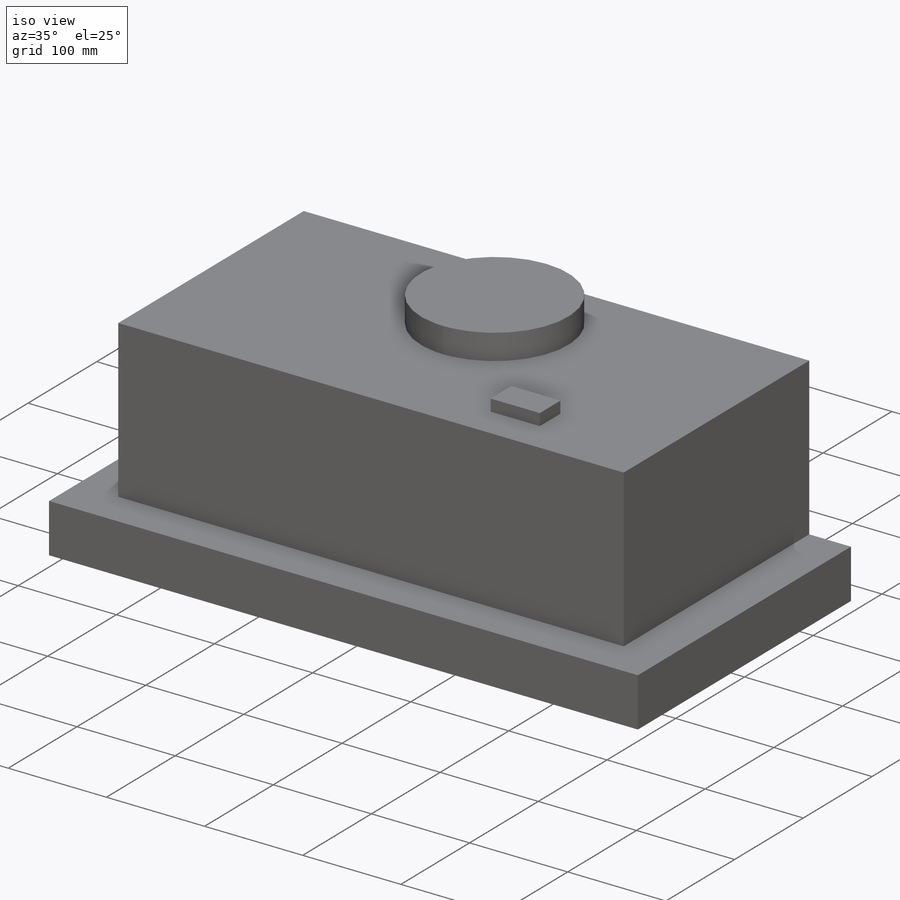
[diagram: iso view]
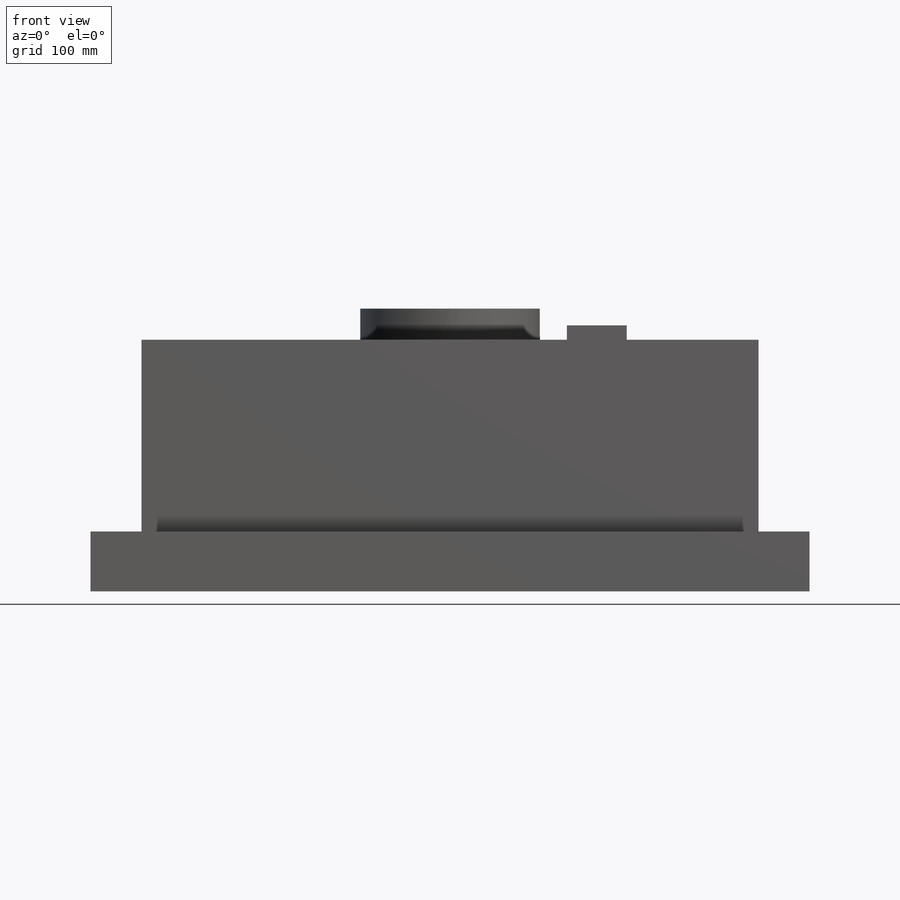
[diagram: front view]
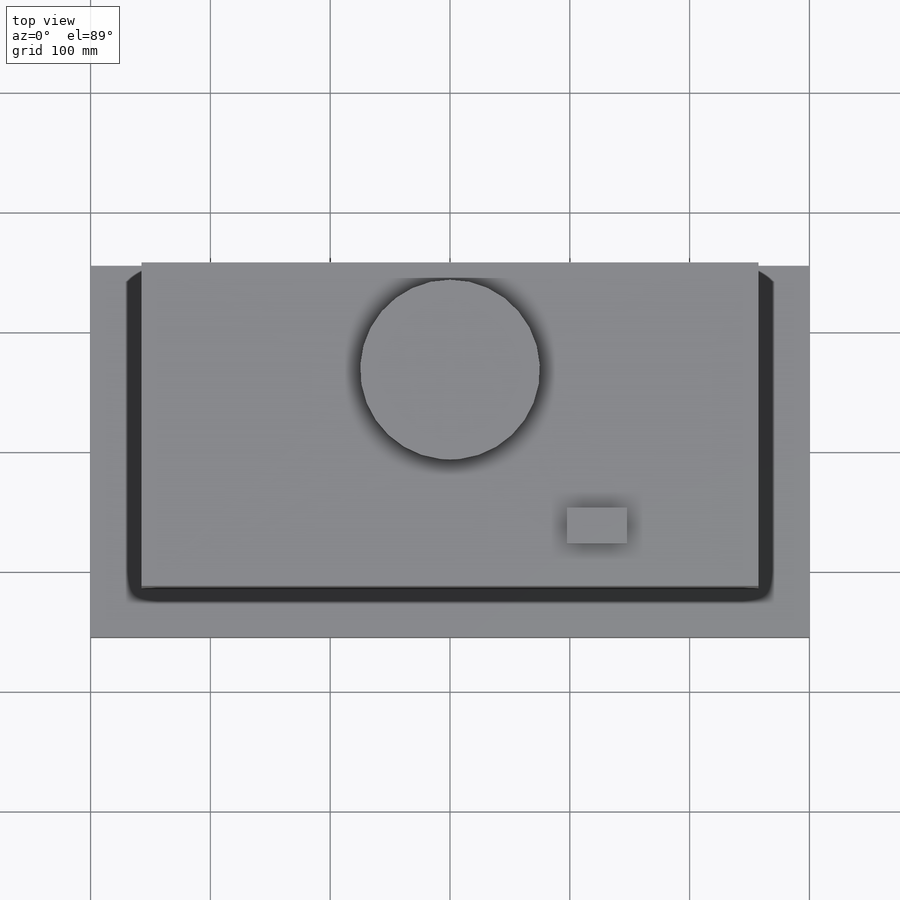
[diagram: top view]
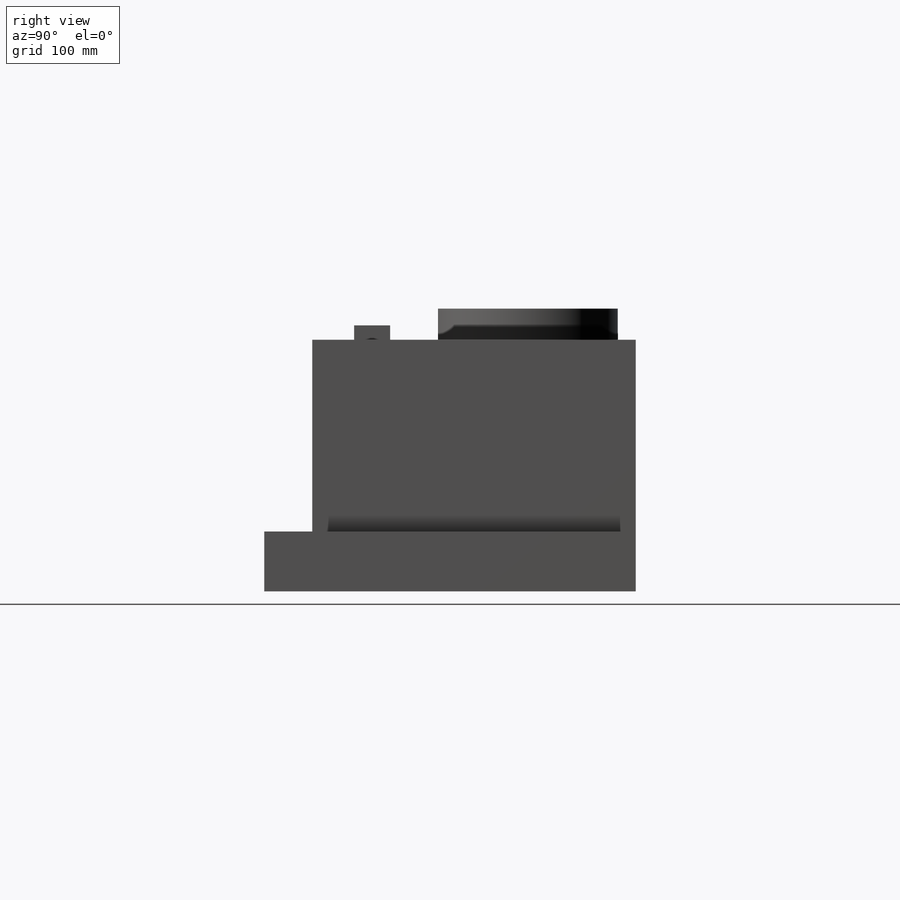
[diagram: right view]
SOLIDWORKS PART (.sldprt)
format: sldprt  version: not decoded by parser v0  size: 177,152 bytes
history: native  units: mm
features: sketch x4, extrude x4, material x1, plane x1 (+12 scaffold rows collapsed)
feature tree (22):
  scaffold x12  (default folders/planes/origin — collapsed)
  material  "Material <not specified>"
  sketch  "Sketch1"  dims[D1=310.0mm D2=600.0mm]
  extrude  "Boss-Extrude1"  Depth=50mm
  sketch  "Sketch2"  dims[D1=270.0mm D2=515.0mm]
  extrude  "Boss-Extrude2"  Depth=160mm
  sketch  "Sketch3"  dims[D1=150.0mm D2=90.0mm]
  extrude  "Boss-Extrude3"  Depth=26mm
  plane  "Plane1"  Offset=110mm
  sketch  "Sketch4"  dims[D1=12.0mm D2=30.0mm D3=35.0mm]
  extrude  "Boss-Extrude4"  Depth=50mm
decode coverage: 8 of 8 modeling features carry decoded parameters
note: suppression state not decoded; provenance and decode notes live in map.json
